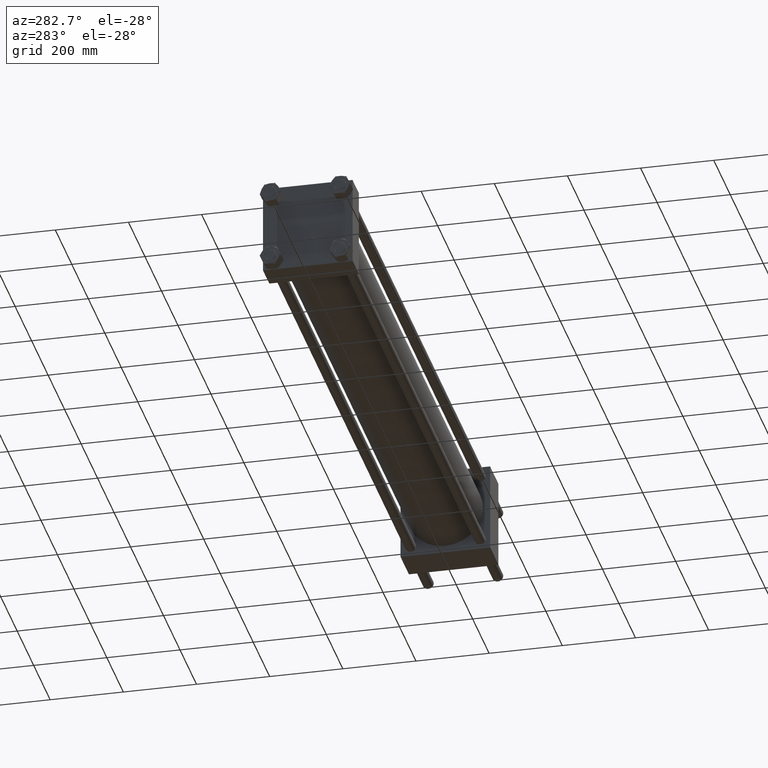
[diagram: clean part render]
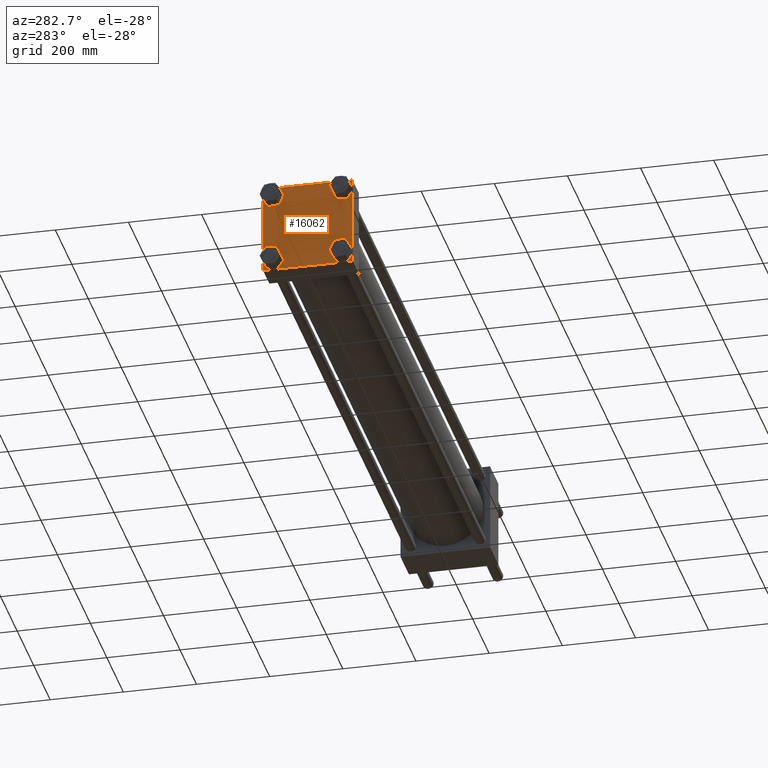
[diagram: same view with one face highlighted and labeled with its STEP entity id]
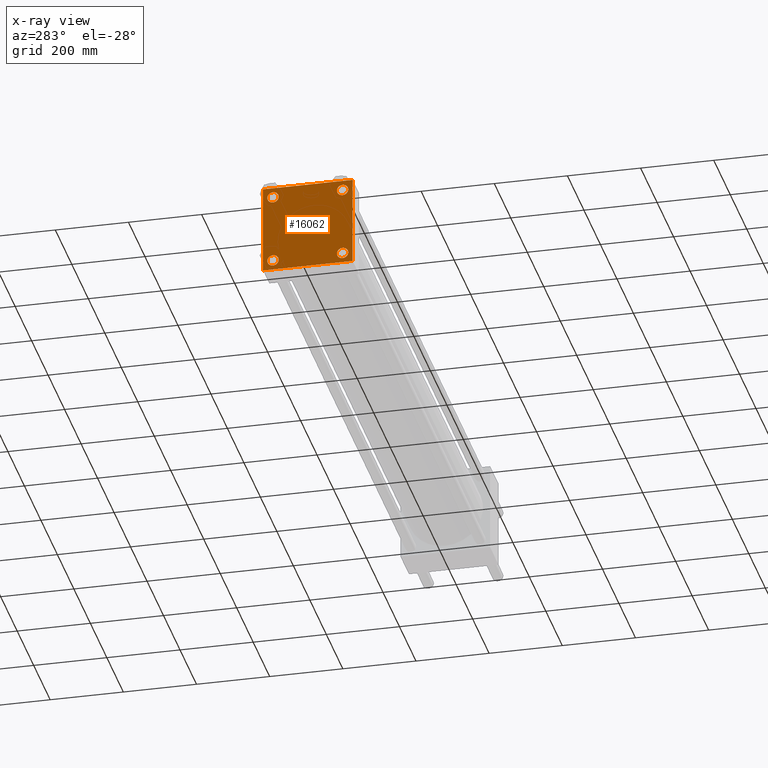
[diagram: x-ray of the same camera — body ghosted, the highlighted face saturated]
A machine part, auxiliary view. The second image highlights one B-rep face of the part: STEP entity #16062.
The next image is the same camera in x-ray: the body ghosted, the highlighted face saturated — about 0% of this face is hidden behind the body in this view.
In plain terms, the highlighted planar face has unit normal (-1, 0, 0).
Its self-contained STEP definition (entity closure, byte-faithful):
#207 = CIRCLE ( 'NONE', #11306, 15.50000000000001421 ) ;
#598 = DIRECTION ( 'NONE',  ( 1.000000000000000000, -0.000000000000000000, -0.000000000000000000 ) ) ;
#959 = AXIS2_PLACEMENT_3D ( 'NONE', #29258, #20270, #2927 ) ;
#1414 = ORIENTED_EDGE ( 'NONE', *, *, #11899, .T. ) ;
#1458 = CIRCLE ( 'NONE', #21757, 15.50000000000001421 ) ;
#1649 = EDGE_LOOP ( 'NONE', ( #26758, #10033, #43115, #10860, #3377, #1414, #26134, #13573 ) ) ;
#1870 = CARTESIAN_POINT ( 'NONE',  ( 0.000000000000000000, 95.09999999999999432, 95.10000000000002274 ) ) ;
#1906 = LINE ( 'NONE', #54857, #55916 ) ;
#2121 = VERTEX_POINT ( 'NONE', #52211 ) ;
#2927 = DIRECTION ( 'NONE',  ( 0.000000000000000000, 0.000000000000000000, 1.000000000000000000 ) ) ;
#3202 = PLANE ( 'NONE',  #959 ) ;
#3374 = VERTEX_POINT ( 'NONE', #27257 ) ;
#3377 = ORIENTED_EDGE ( 'NONE', *, *, #26880, .F. ) ;
#3408 = VERTEX_POINT ( 'NONE', #28964 ) ;
#3653 = LINE ( 'NONE', #29137, #11501 ) ;
#4306 = CIRCLE ( 'NONE', #36653, 15.50000000000001421 ) ;
#4878 = EDGE_CURVE ( 'NONE', #15182, #7691, #7281, .T. ) ;
#5269 = AXIS2_PLACEMENT_3D ( 'NONE', #15136, #14287, #9689 ) ;
#5689 = VERTEX_POINT ( 'NONE', #42021 ) ;
#7270 = FACE_BOUND ( 'NONE', #46759, .T. ) ;
#7281 = LINE ( 'NONE', #55028, #43285 ) ;
#7317 = EDGE_CURVE ( 'NONE', #57261, #46995, #34993, .T. ) ;
#7691 = VERTEX_POINT ( 'NONE', #44957 ) ;
#8496 = EDGE_CURVE ( 'NONE', #3408, #21903, #39653, .T. ) ;
#8577 = CIRCLE ( 'NONE', #26121, 15.50000000000001421 ) ;
#9689 = DIRECTION ( 'NONE',  ( 0.000000000000000000, 0.000000000000000000, 1.000000000000000000 ) ) ;
#10033 = ORIENTED_EDGE ( 'NONE', *, *, #4878, .T. ) ;
#10296 = CARTESIAN_POINT ( 'NONE',  ( 0.000000000000000000, 122.5000000000000568, 122.0000000000000853 ) ) ;
#10860 = ORIENTED_EDGE ( 'NONE', *, *, #45034, .T. ) ;
#11114 = DIRECTION ( 'NONE',  ( 0.000000000000000000, 0.000000000000000000, 1.000000000000000000 ) ) ;
#11306 = AXIS2_PLACEMENT_3D ( 'NONE', #29229, #39034, #38193 ) ;
#11501 = VECTOR ( 'NONE', #56318, 1000.000000000000000 ) ;
#11526 = LINE ( 'NONE', #29185, #56612 ) ;
#11666 = DIRECTION ( 'NONE',  ( 0.000000000000000000, 0.000000000000000000, -1.000000000000000000 ) ) ;
#11899 = EDGE_CURVE ( 'NONE', #44915, #2121, #30677, .T. ) ;
#12118 = ORIENTED_EDGE ( 'NONE', *, *, #23323, .T. ) ;
#12741 = CARTESIAN_POINT ( 'NONE',  ( 0.000000000000000000, 95.09999999999999432, -95.10000000000002274 ) ) ;
#12782 = CARTESIAN_POINT ( 'NONE',  ( 0.000000000000000000, -95.09999999999996589, 79.60000000000003695 ) ) ;
#13573 = ORIENTED_EDGE ( 'NONE', *, *, #22873, .T. ) ;
#13735 = LINE ( 'NONE', #49057, #18850 ) ;
#14287 = DIRECTION ( 'NONE',  ( 1.000000000000000000, -0.000000000000000000, -0.000000000000000000 ) ) ;
#14428 = EDGE_LOOP ( 'NONE', ( #14901, #20163 ) ) ;
#14751 = DIRECTION ( 'NONE',  ( 0.000000000000000000, -0.7071067811865474617, 0.7071067811865474617 ) ) ;
#14901 = ORIENTED_EDGE ( 'NONE', *, *, #32032, .T. ) ;
#15136 = CARTESIAN_POINT ( 'NONE',  ( 0.000000000000000000, -95.09999999999996589, -95.10000000000005116 ) ) ;
#15182 = VERTEX_POINT ( 'NONE', #53879 ) ;
#15186 = DIRECTION ( 'NONE',  ( 1.000000000000000000, -0.000000000000000000, -0.000000000000000000 ) ) ;
#16062 = ADVANCED_FACE ( 'NONE', ( #7270, #46346, #51526, #42848, #28975 ), #3202, .T. ) ;
#16288 = CARTESIAN_POINT ( 'NONE',  ( 0.000000000000000000, -122.0000000000000000, -122.5000000000000568 ) ) ;
#18420 = CARTESIAN_POINT ( 'NONE',  ( 0.000000000000000000, 95.09999999999999432, -110.6000000000000369 ) ) ;
#18850 = VECTOR ( 'NONE', #11666, 1000.000000000000000 ) ;
#19654 = CARTESIAN_POINT ( 'NONE',  ( 0.000000000000000000, -122.2500000000000142, -122.2500000000000142 ) ) ;
#19794 = DIRECTION ( 'NONE',  ( 0.000000000000000000, -1.132880637372608493E-16, -1.000000000000000000 ) ) ;
#20163 = ORIENTED_EDGE ( 'NONE', *, *, #8496, .T. ) ;
#20270 = DIRECTION ( 'NONE',  ( -1.000000000000000000, 0.000000000000000000, 0.000000000000000000 ) ) ;
#21757 = AXIS2_PLACEMENT_3D ( 'NONE', #54110, #598, #27779 ) ;
#21816 = EDGE_CURVE ( 'NONE', #37849, #32938, #207, .T. ) ;
#21903 = VERTEX_POINT ( 'NONE', #53215 ) ;
#22873 = EDGE_CURVE ( 'NONE', #34488, #51231, #11526, .T. ) ;
#23168 = VECTOR ( 'NONE', #44285, 1000.000000000000114 ) ;
#23323 = EDGE_CURVE ( 'NONE', #3374, #5689, #8577, .T. ) ;
#23446 = VECTOR ( 'NONE', #19794, 1000.000000000000000 ) ;
#23667 = EDGE_LOOP ( 'NONE', ( #12118, #26231 ) ) ;
#24126 = DIRECTION ( 'NONE',  ( 1.000000000000000000, -0.000000000000000000, -0.000000000000000000 ) ) ;
#24225 = ORIENTED_EDGE ( 'NONE', *, *, #7317, .T. ) ;
#25485 = DIRECTION ( 'NONE',  ( 0.000000000000000000, 0.000000000000000000, 1.000000000000000000 ) ) ;
#26121 = AXIS2_PLACEMENT_3D ( 'NONE', #1870, #24126, #11114 ) ;
#26134 = ORIENTED_EDGE ( 'NONE', *, *, #30897, .F. ) ;
#26231 = ORIENTED_EDGE ( 'NONE', *, *, #46785, .T. ) ;
#26758 = ORIENTED_EDGE ( 'NONE', *, *, #27781, .T. ) ;
#26880 = EDGE_CURVE ( 'NONE', #44915, #42967, #33409, .T. ) ;
#27257 = CARTESIAN_POINT ( 'NONE',  ( 0.000000000000000000, 95.09999999999999432, 110.6000000000000369 ) ) ;
#27334 = DIRECTION ( 'NONE',  ( 0.000000000000000000, 0.000000000000000000, 1.000000000000000000 ) ) ;
#27736 = ORIENTED_EDGE ( 'NONE', *, *, #41110, .T. ) ;
#27779 = DIRECTION ( 'NONE',  ( 0.000000000000000000, 0.000000000000000000, 1.000000000000000000 ) ) ;
#27781 = EDGE_CURVE ( 'NONE', #51231, #15182, #13735, .T. ) ;
#28520 = CARTESIAN_POINT ( 'NONE',  ( 0.000000000000000000, -95.09999999999996589, -95.10000000000005116 ) ) ;
#28964 = CARTESIAN_POINT ( 'NONE',  ( 0.000000000000000000, -95.09999999999996589, -110.6000000000000654 ) ) ;
#28975 = FACE_OUTER_BOUND ( 'NONE', #1649, .T. ) ;
#29137 = CARTESIAN_POINT ( 'NONE',  ( 0.000000000000000000, 122.5000000000000568, -122.5000000000000000 ) ) ;
#29185 = CARTESIAN_POINT ( 'NONE',  ( 0.000000000000000000, 122.2499999999932641, 122.2500000000068496 ) ) ;
#29229 = CARTESIAN_POINT ( 'NONE',  ( 0.000000000000000000, 95.09999999999999432, -95.10000000000002274 ) ) ;
#29258 = CARTESIAN_POINT ( 'NONE',  ( 0.000000000000000000, 0.000000000000000000, 0.000000000000000000 ) ) ;
#29339 = EDGE_CURVE ( 'NONE', #7691, #49902, #3653, .T. ) ;
#29370 = DIRECTION ( 'NONE',  ( 0.000000000000000000, 0.000000000000000000, 1.000000000000000000 ) ) ;
#29837 = CARTESIAN_POINT ( 'NONE',  ( 0.000000000000000000, -122.4999999999999716, 122.0000000000001137 ) ) ;
#30677 = LINE ( 'NONE', #43705, #23168 ) ;
#30897 = EDGE_CURVE ( 'NONE', #34488, #2121, #1906, .T. ) ;
#32029 = CARTESIAN_POINT ( 'NONE',  ( 0.000000000000000000, -95.09999999999996589, 110.6000000000000654 ) ) ;
#32032 = EDGE_CURVE ( 'NONE', #21903, #3408, #42188, .T. ) ;
#32938 = VERTEX_POINT ( 'NONE', #43421 ) ;
#33051 = CIRCLE ( 'NONE', #36735, 15.50000000000001421 ) ;
#33409 = LINE ( 'NONE', #33693, #23446 ) ;
#33693 = CARTESIAN_POINT ( 'NONE',  ( 0.000000000000000000, -122.4999999999999716, 122.5000000000000000 ) ) ;
#34488 = VERTEX_POINT ( 'NONE', #42103 ) ;
#34771 = ORIENTED_EDGE ( 'NONE', *, *, #44860, .T. ) ;
#34993 = CIRCLE ( 'NONE', #42404, 15.50000000000001421 ) ;
#36653 = AXIS2_PLACEMENT_3D ( 'NONE', #12741, #56457, #25485 ) ;
#36688 = CARTESIAN_POINT ( 'NONE',  ( 0.000000000000000000, -95.09999999999996589, 95.10000000000005116 ) ) ;
#36735 = AXIS2_PLACEMENT_3D ( 'NONE', #46128, #41787, #27334 ) ;
#37849 = VERTEX_POINT ( 'NONE', #18420 ) ;
#37945 = DIRECTION ( 'NONE',  ( -0.000000000000000000, -0.7071067811865474617, -0.7071067811865474617 ) ) ;
#38193 = DIRECTION ( 'NONE',  ( 0.000000000000000000, 0.000000000000000000, 1.000000000000000000 ) ) ;
#39034 = DIRECTION ( 'NONE',  ( 1.000000000000000000, -0.000000000000000000, -0.000000000000000000 ) ) ;
#39653 = CIRCLE ( 'NONE', #54449, 15.50000000000001421 ) ;
#41110 = EDGE_CURVE ( 'NONE', #46995, #57261, #1458, .T. ) ;
#41787 = DIRECTION ( 'NONE',  ( 1.000000000000000000, -0.000000000000000000, -0.000000000000000000 ) ) ;
#42021 = CARTESIAN_POINT ( 'NONE',  ( 0.000000000000000000, 95.09999999999999432, 79.60000000000000853 ) ) ;
#42103 = CARTESIAN_POINT ( 'NONE',  ( 0.000000000000000000, 122.0000000000000568, 122.5000000000000284 ) ) ;
#42188 = CIRCLE ( 'NONE', #5269, 15.50000000000001421 ) ;
#42404 = AXIS2_PLACEMENT_3D ( 'NONE', #36688, #44812, #54051 ) ;
#42848 = FACE_BOUND ( 'NONE', #23667, .T. ) ;
#42967 = VERTEX_POINT ( 'NONE', #49447 ) ;
#43115 = ORIENTED_EDGE ( 'NONE', *, *, #29339, .T. ) ;
#43285 = VECTOR ( 'NONE', #37945, 1000.000000000000114 ) ;
#43421 = CARTESIAN_POINT ( 'NONE',  ( 0.000000000000000000, 95.09999999999999432, -79.60000000000000853 ) ) ;
#43705 = CARTESIAN_POINT ( 'NONE',  ( 0.000000000000000000, -122.2499999999932641, 122.2500000000068212 ) ) ;
#44285 = DIRECTION ( 'NONE',  ( -0.000000000000000000, 0.7071067811865867636, 0.7071067811865082708 ) ) ;
#44812 = DIRECTION ( 'NONE',  ( 1.000000000000000000, -0.000000000000000000, -0.000000000000000000 ) ) ;
#44860 = EDGE_CURVE ( 'NONE', #32938, #37849, #4306, .T. ) ;
#44915 = VERTEX_POINT ( 'NONE', #29837 ) ;
#44957 = CARTESIAN_POINT ( 'NONE',  ( 0.000000000000000000, 122.0000000000000568, -122.5000000000000000 ) ) ;
#45034 = EDGE_CURVE ( 'NONE', #49902, #42967, #46586, .T. ) ;
#45045 = DIRECTION ( 'NONE',  ( 0.000000000000000000, -1.000000000000000000, -1.132880637372608740E-16 ) ) ;
#46128 = CARTESIAN_POINT ( 'NONE',  ( 0.000000000000000000, 95.09999999999999432, 95.10000000000002274 ) ) ;
#46346 = FACE_BOUND ( 'NONE', #14428, .T. ) ;
#46586 = LINE ( 'NONE', #19654, #56053 ) ;
#46759 = EDGE_LOOP ( 'NONE', ( #27736, #24225 ) ) ;
#46785 = EDGE_CURVE ( 'NONE', #5689, #3374, #33051, .T. ) ;
#46846 = DIRECTION ( 'NONE',  ( 0.000000000000000000, 0.7071067811865868746, -0.7071067811865081598 ) ) ;
#46995 = VERTEX_POINT ( 'NONE', #32029 ) ;
#49057 = CARTESIAN_POINT ( 'NONE',  ( 0.000000000000000000, 122.5000000000000568, 122.5000000000000284 ) ) ;
#49447 = CARTESIAN_POINT ( 'NONE',  ( 0.000000000000000000, -122.5000000000000000, -122.0000000000000568 ) ) ;
#49617 = EDGE_LOOP ( 'NONE', ( #34771, #53285 ) ) ;
#49902 = VERTEX_POINT ( 'NONE', #16288 ) ;
#51231 = VERTEX_POINT ( 'NONE', #10296 ) ;
#51526 = FACE_BOUND ( 'NONE', #49617, .T. ) ;
#52211 = CARTESIAN_POINT ( 'NONE',  ( 0.000000000000000000, -121.9999999999999716, 122.5000000000000000 ) ) ;
#53215 = CARTESIAN_POINT ( 'NONE',  ( 0.000000000000000000, -95.09999999999996589, -79.60000000000003695 ) ) ;
#53285 = ORIENTED_EDGE ( 'NONE', *, *, #21816, .T. ) ;
#53879 = CARTESIAN_POINT ( 'NONE',  ( 0.000000000000000000, 122.5000000000000568, -121.9999999999999432 ) ) ;
#54051 = DIRECTION ( 'NONE',  ( 0.000000000000000000, 0.000000000000000000, 1.000000000000000000 ) ) ;
#54110 = CARTESIAN_POINT ( 'NONE',  ( 0.000000000000000000, -95.09999999999996589, 95.10000000000005116 ) ) ;
#54449 = AXIS2_PLACEMENT_3D ( 'NONE', #28520, #15186, #29370 ) ;
#54857 = CARTESIAN_POINT ( 'NONE',  ( 0.000000000000000000, 122.5000000000000568, 122.5000000000000284 ) ) ;
#55028 = CARTESIAN_POINT ( 'NONE',  ( 0.000000000000000000, 122.2500000000000142, -122.2500000000000142 ) ) ;
#55916 = VECTOR ( 'NONE', #45045, 1000.000000000000000 ) ;
#56053 = VECTOR ( 'NONE', #14751, 1000.000000000000114 ) ;
#56318 = DIRECTION ( 'NONE',  ( 0.000000000000000000, -1.000000000000000000, -2.265761274745216987E-16 ) ) ;
#56457 = DIRECTION ( 'NONE',  ( 1.000000000000000000, -0.000000000000000000, -0.000000000000000000 ) ) ;
#56612 = VECTOR ( 'NONE', #46846, 1000.000000000000000 ) ;
#57261 = VERTEX_POINT ( 'NONE', #12782 ) ;